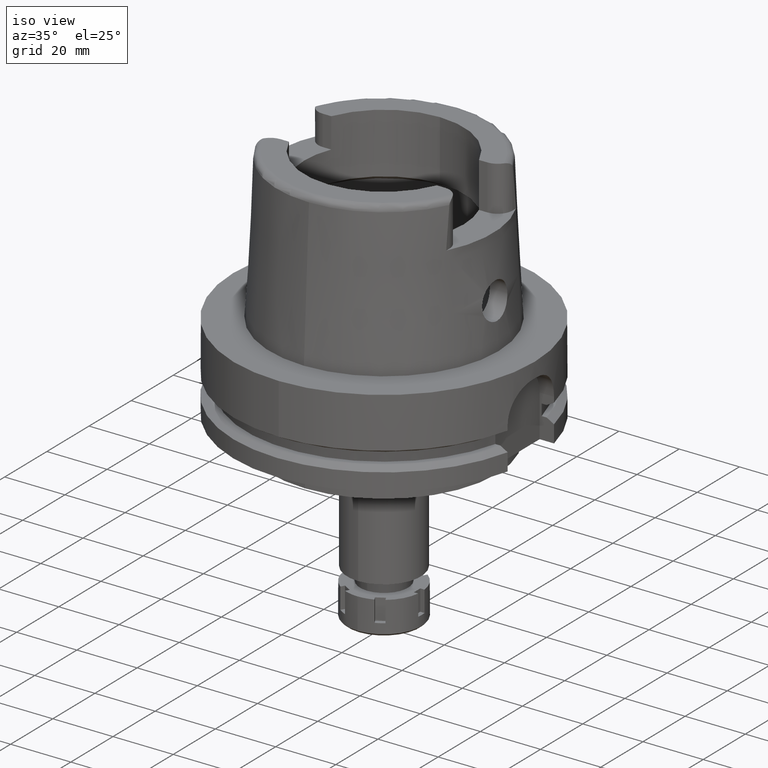
[diagram: clean part render]
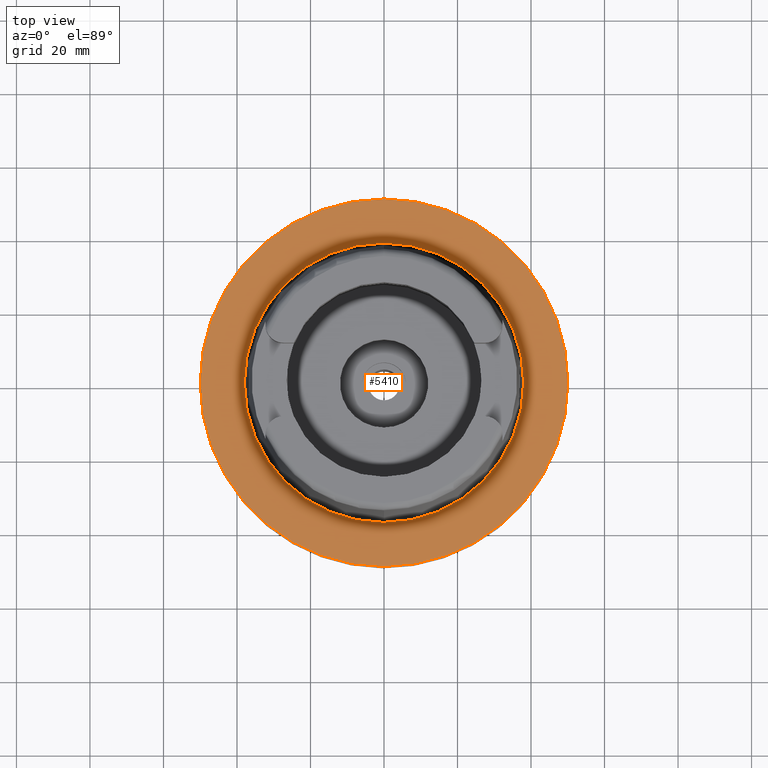
[diagram: tour spotlight — one face highlighted and labeled with its STEP entity id]
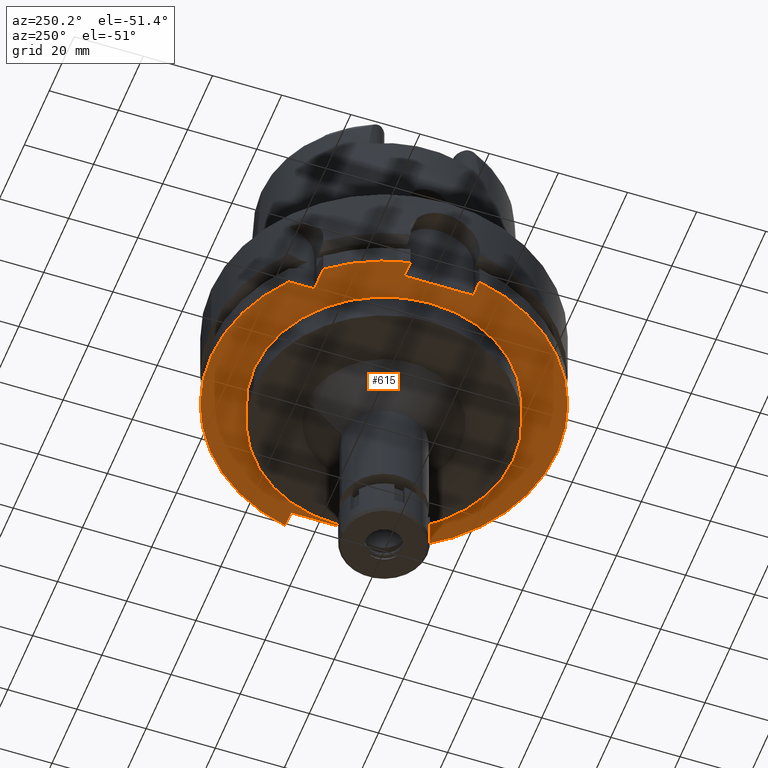
[diagram: tour spotlight — one face highlighted and labeled with its STEP entity id]
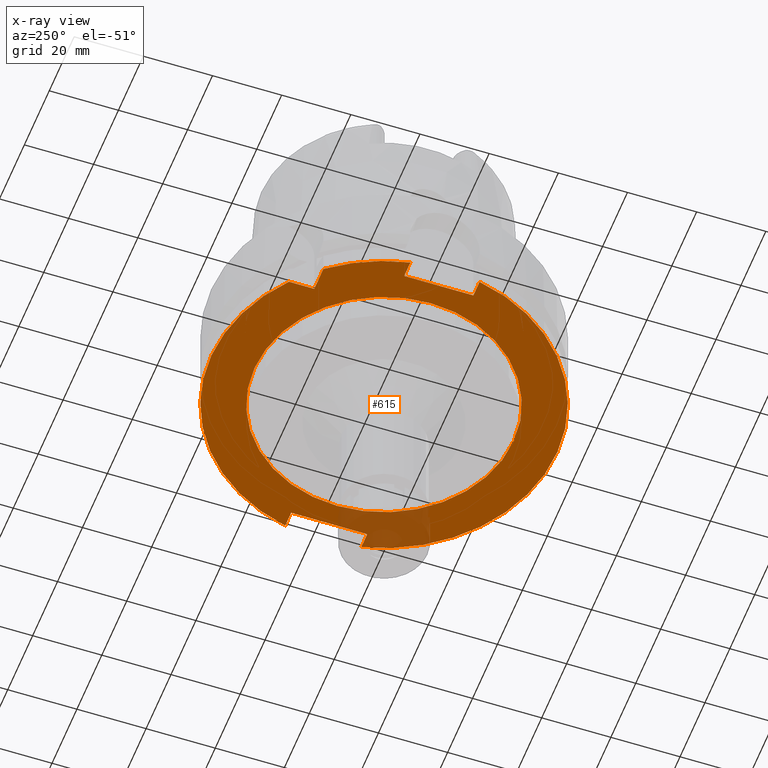
[diagram: x-ray of the same camera — body ghosted, this tour face saturated]
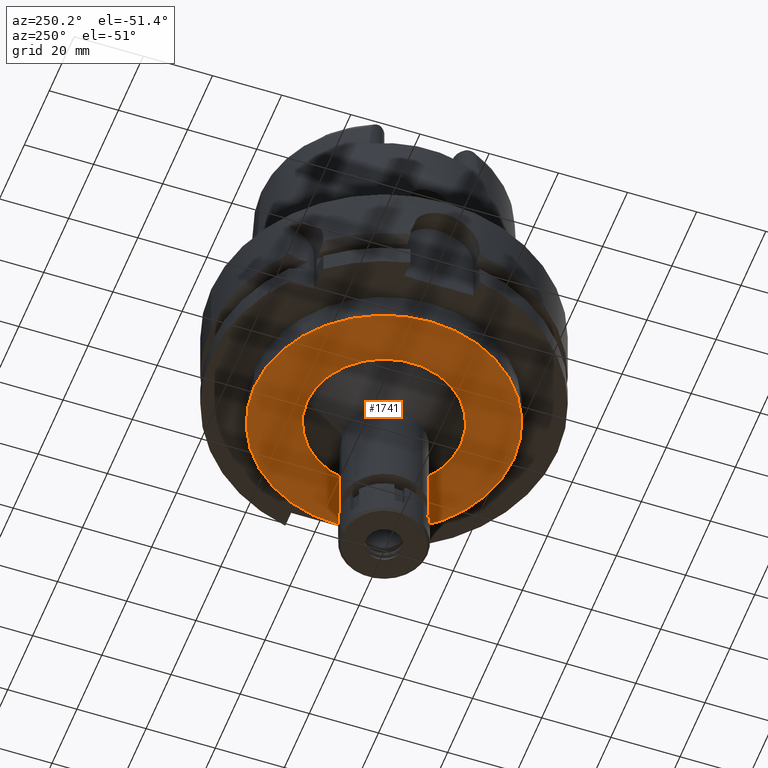
[diagram: tour spotlight — one face highlighted and labeled with its STEP entity id]
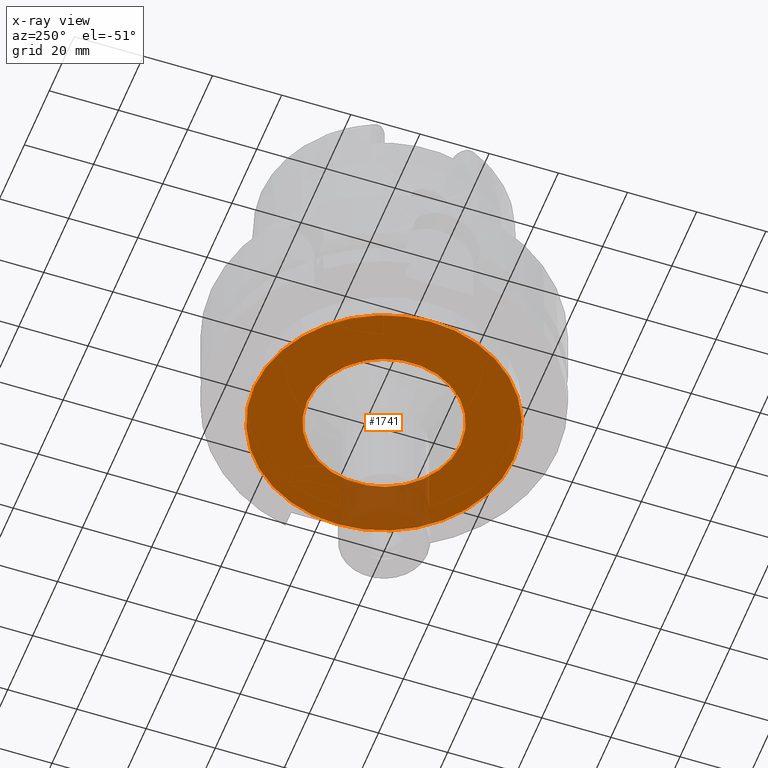
[diagram: x-ray of the same camera — body ghosted, this tour face saturated]
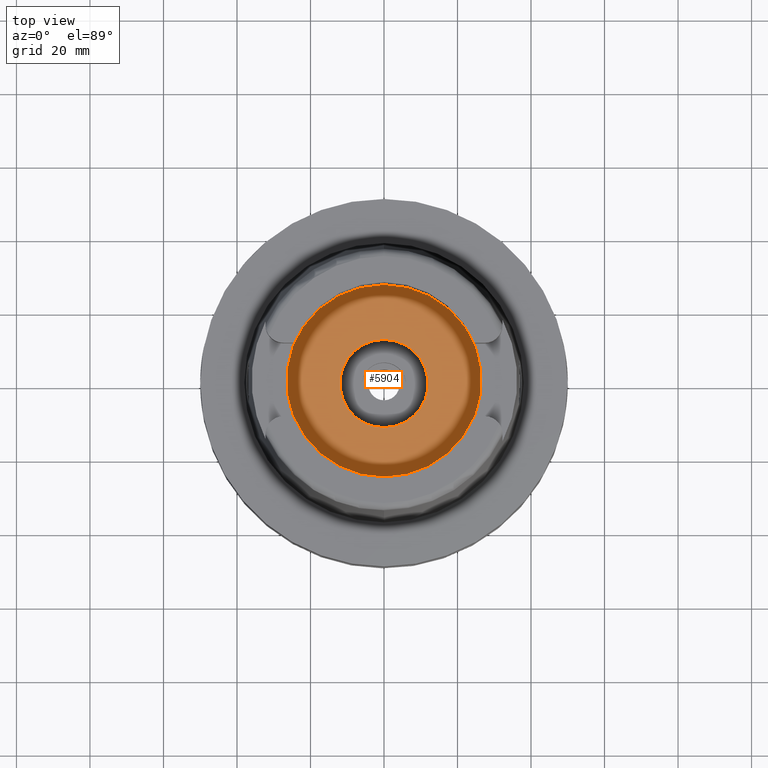
[diagram: tour spotlight — one face highlighted and labeled with its STEP entity id]
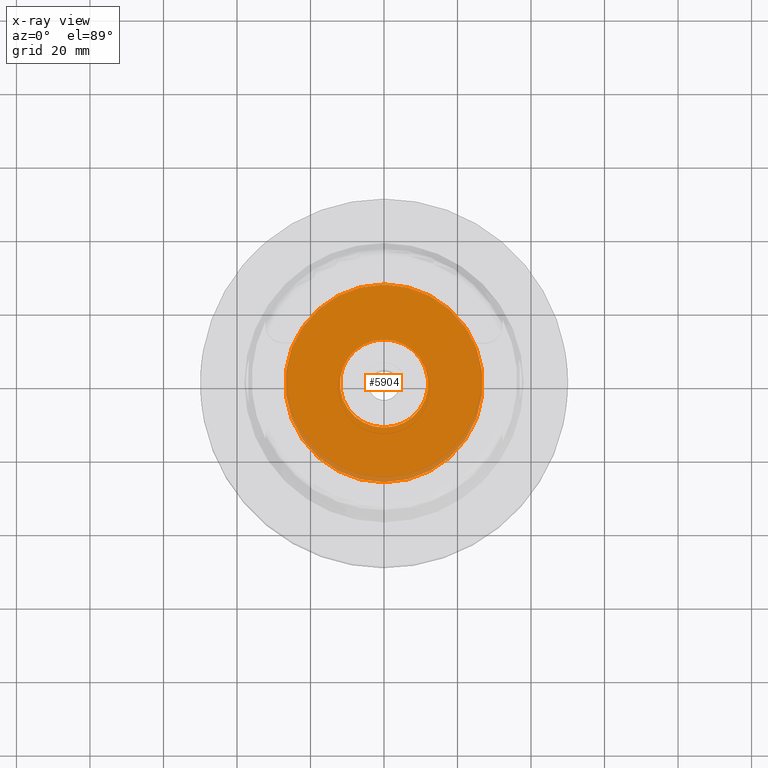
[diagram: x-ray of the same camera — body ghosted, this tour face saturated]
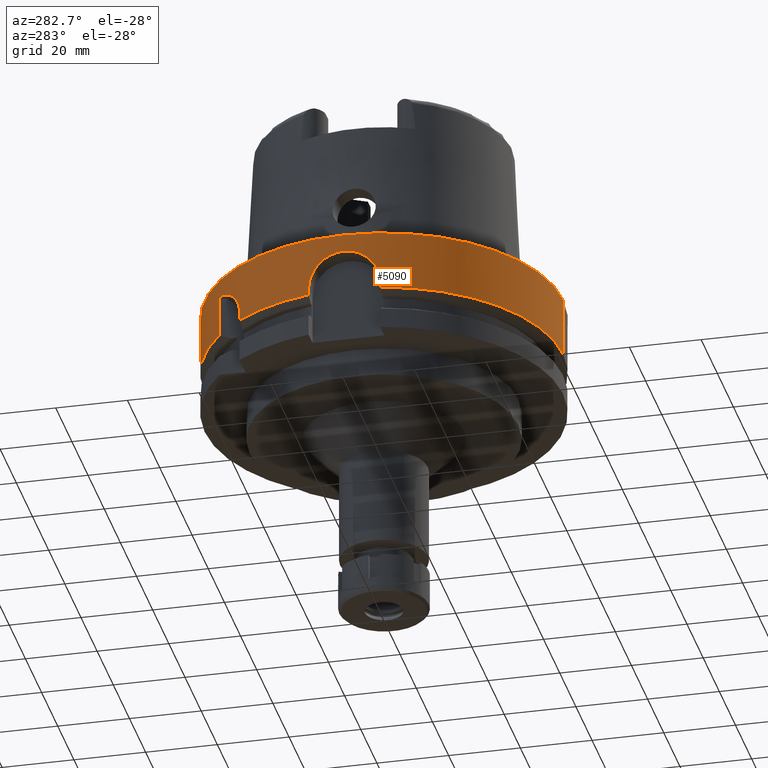
[diagram: tour spotlight — one face highlighted and labeled with its STEP entity id]
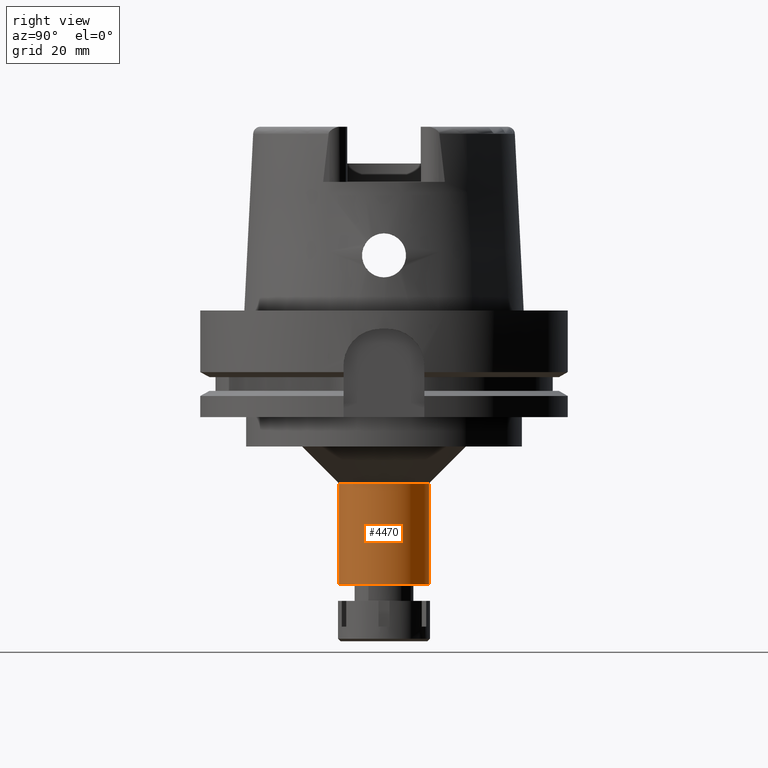
[diagram: tour spotlight — one face highlighted and labeled with its STEP entity id]
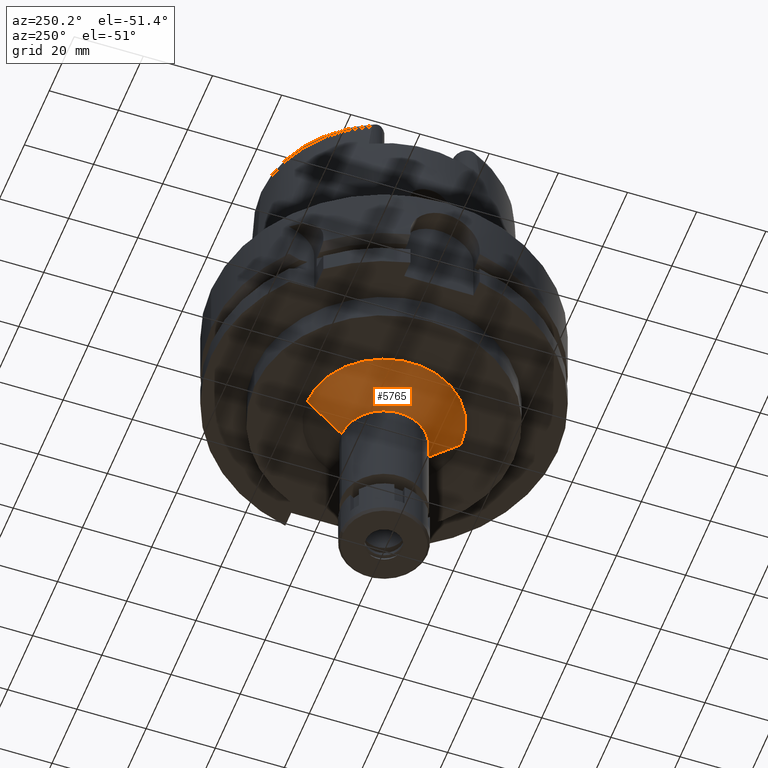
[diagram: tour spotlight — one face highlighted and labeled with its STEP entity id]
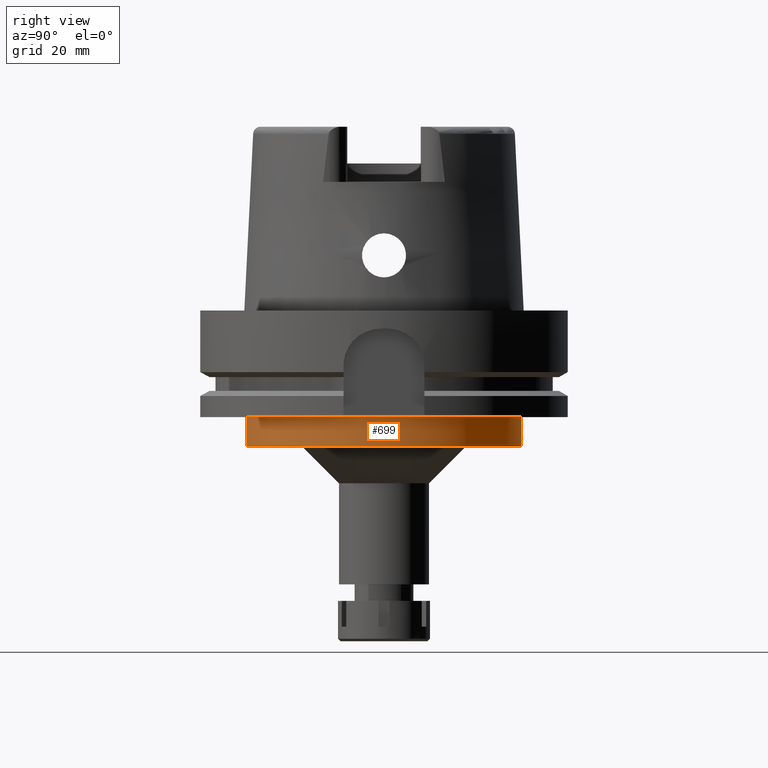
[diagram: tour spotlight — one face highlighted and labeled with its STEP entity id]
A machine part: a face-by-face anatomy tour. The part has 138 B-rep faces; the first image is the clean iso view, then the 8 largest visible faces are spotlighted one at a time (largest first), each with its STEP entity span.

Face 1 — top view, entity #5410. In plain terms, the highlighted planar face has unit normal (0, 0, 1).
Definition (entity closure, byte-faithful):
#163 = EDGE_CURVE ( 'NONE', #2428, #5601, #1936, .T. ) ;
#269 = CARTESIAN_POINT ( 'NONE',  ( 0.0000000000000000000, 0.0000000000000000000, -1.705302565823999875E-13 ) ) ;
#584 = EDGE_CURVE ( 'NONE', #3067, #1743, #4687, .T. ) ;
#796 = CIRCLE ( 'NONE', #3166, 50.00000000000000000 ) ;
#916 = AXIS2_PLACEMENT_3D ( 'NONE', #269, #3552, #2037 ) ;
#1090 = AXIS2_PLACEMENT_3D ( 'NONE', #2962, #4925, #3029 ) ;
#1112 = PLANE ( 'NONE',  #1090 ) ;
#1229 = CARTESIAN_POINT ( 'NONE',  ( 0.0000000000000000000, 0.0000000000000000000, 1.023181539494999863E-12 ) ) ;
#1282 = CIRCLE ( 'NONE', #2476, 38.00001658251999714 ) ;
#1675 = ORIENTED_EDGE ( 'NONE', *, *, #5231, .F. ) ;
#1743 = VERTEX_POINT ( 'NONE', #2818 ) ;
#1924 = CARTESIAN_POINT ( 'NONE',  ( 0.0000000000000000000, 0.0000000000000000000, 1.023181539494999863E-12 ) ) ;
#1936 = CIRCLE ( 'NONE', #2235, 38.00001658251999714 ) ;
#1978 = CARTESIAN_POINT ( 'NONE',  ( 0.0000000000000000000, -38.00001658251999714, 6.110667527536999933E-13 ) ) ;
#2037 = DIRECTION ( 'NONE',  ( 0.0000000000000000000, -1.000000000000000000, 0.0000000000000000000 ) ) ;
#2235 = AXIS2_PLACEMENT_3D ( 'NONE', #1924, #2938, #3819 ) ;
#2428 = VERTEX_POINT ( 'NONE', #1978 ) ;
#2476 = AXIS2_PLACEMENT_3D ( 'NONE', #1229, #3615, #5579 ) ;
#2551 = CARTESIAN_POINT ( 'NONE',  ( 0.0000000000000000000, 0.0000000000000000000, -1.705302565823999875E-13 ) ) ;
#2818 = CARTESIAN_POINT ( 'NONE',  ( 0.0000000000000000000, 50.00000000000000000, -9.947598300640998705E-14 ) ) ;
#2876 = ORIENTED_EDGE ( 'NONE', *, *, #163, .F. ) ;
#2938 = DIRECTION ( 'NONE',  ( 0.0000000000000000000, 0.0000000000000000000, 1.000000000000000000 ) ) ;
#2962 = CARTESIAN_POINT ( 'NONE',  ( 0.0000000000000000000, 0.0000000000000000000, 1.421085471519999843E-14 ) ) ;
#3029 = DIRECTION ( 'NONE',  ( 1.000000000000000000, 0.0000000000000000000, 0.0000000000000000000 ) ) ;
#3067 = VERTEX_POINT ( 'NONE', #4297 ) ;
#3166 = AXIS2_PLACEMENT_3D ( 'NONE', #2551, #3519, #3666 ) ;
#3478 = ORIENTED_EDGE ( 'NONE', *, *, #584, .F. ) ;
#3519 = DIRECTION ( 'NONE',  ( 0.0000000000000000000, 0.0000000000000000000, -1.000000000000000000 ) ) ;
#3552 = DIRECTION ( 'NONE',  ( 0.0000000000000000000, 0.0000000000000000000, -1.000000000000000000 ) ) ;
#3615 = DIRECTION ( 'NONE',  ( 0.0000000000000000000, 0.0000000000000000000, 1.000000000000000000 ) ) ;
#3666 = DIRECTION ( 'NONE',  ( 0.0000000000000000000, 1.000000000000000000, 0.0000000000000000000 ) ) ;
#3819 = DIRECTION ( 'NONE',  ( 0.0000000000000000000, -1.000000000000000000, 0.0000000000000000000 ) ) ;
#4227 = EDGE_LOOP ( 'NONE', ( #1675, #2876 ) ) ;
#4297 = CARTESIAN_POINT ( 'NONE',  ( 0.0000000000000000000, -50.00000000000000000, -1.705302565823999875E-13 ) ) ;
#4660 = ORIENTED_EDGE ( 'NONE', *, *, #5574, .F. ) ;
#4687 = CIRCLE ( 'NONE', #916, 50.00000000000000000 ) ;
#4925 = DIRECTION ( 'NONE',  ( 0.0000000000000000000, 0.0000000000000000000, 1.000000000000000000 ) ) ;
#5223 = EDGE_LOOP ( 'NONE', ( #4660, #3478 ) ) ;
#5231 = EDGE_CURVE ( 'NONE', #5601, #2428, #1282, .T. ) ;
#5309 = FACE_OUTER_BOUND ( 'NONE', #5223, .T. ) ;
#5368 = FACE_BOUND ( 'NONE', #4227, .T. ) ;
#5410 = ADVANCED_FACE ( 'NONE', ( #5309, #5368 ), #1112, .T. ) ;
#5574 = EDGE_CURVE ( 'NONE', #1743, #3067, #796, .T. ) ;
#5579 = DIRECTION ( 'NONE',  ( 0.0000000000000000000, 1.000000000000000000, 0.0000000000000000000 ) ) ;
#5601 = VERTEX_POINT ( 'NONE', #5603 ) ;
#5603 = CARTESIAN_POINT ( 'NONE',  ( 0.0000000000000000000, 38.00001658251999714, 1.023181539494999863E-12 ) ) ;

Face 2 — auxiliary view, entity #615. An x-ray twin of the same camera follows (body ghosted, this face saturated) — the face is partly hidden behind the body. In plain terms, the highlighted planar face has unit normal (0, 0, 1).
Definition (entity closure, byte-faithful):
#15 = AXIS2_PLACEMENT_3D ( 'NONE', #5532, #353, #4129 ) ;
#111 = VECTOR ( 'NONE', #5170, 1000.000000000000000 ) ;
#205 = LINE ( 'NONE', #2097, #5856 ) ;
#253 = DIRECTION ( 'NONE',  ( 0.0000000000000000000, 0.0000000000000000000, 1.000000000000000000 ) ) ;
#346 = VERTEX_POINT ( 'NONE', #5712 ) ;
#353 = DIRECTION ( 'NONE',  ( 0.0000000000000000000, 0.0000000000000000000, -1.000000000000000000 ) ) ;
#388 = CARTESIAN_POINT ( 'NONE',  ( -38.82975663071000128, 31.50000000000000000, -29.00000000000000000 ) ) ;
#505 = CARTESIAN_POINT ( 'NONE',  ( -44.00000000000000000, -10.00000000000000000, -29.00000000000000000 ) ) ;
#537 = LINE ( 'NONE', #505, #5656 ) ;
#557 = CARTESIAN_POINT ( 'NONE',  ( -44.00000000000000000, -10.00000000000000000, -29.00000000000000000 ) ) ;
#608 = CIRCLE ( 'NONE', #4275, 50.00000000000000000 ) ;
#615 = ADVANCED_FACE ( 'NONE', ( #5450, #1604 ), #4981, .F. ) ;
#623 = EDGE_CURVE ( 'NONE', #871, #4116, #2778, .T. ) ;
#654 = VERTEX_POINT ( 'NONE', #1108 ) ;
#665 = VERTEX_POINT ( 'NONE', #1569 ) ;
#730 = AXIS2_PLACEMENT_3D ( 'NONE', #4430, #2159, #2587 ) ;
#743 = AXIS2_PLACEMENT_3D ( 'NONE', #2425, #3850, #4251 ) ;
#754 = ORIENTED_EDGE ( 'NONE', *, *, #5010, .T. ) ;
#790 = EDGE_CURVE ( 'NONE', #665, #346, #831, .T. ) ;
#831 = LINE ( 'NONE', #4617, #4000 ) ;
#863 = ORIENTED_EDGE ( 'NONE', *, *, #790, .T. ) ;
#871 = VERTEX_POINT ( 'NONE', #1290 ) ;
#884 = LINE ( 'NONE', #1352, #111 ) ;
#930 = DIRECTION ( 'NONE',  ( 0.0000000000000000000, 0.0000000000000000000, -1.000000000000000000 ) ) ;
#1108 = CARTESIAN_POINT ( 'NONE',  ( 48.77499359303000404, 11.00000000000000000, -29.00000000000000000 ) ) ;
#1169 = CARTESIAN_POINT ( 'NONE',  ( 44.00000000000000000, 11.00000000000000000, -29.00000000000000000 ) ) ;
#1230 = DIRECTION ( 'NONE',  ( 0.0000000000000000000, -1.000000000000000000, 0.0000000000000000000 ) ) ;
#1290 = CARTESIAN_POINT ( 'NONE',  ( 48.77499359303000404, -11.00000000000000000, -29.00000000000000000 ) ) ;
#1298 = CARTESIAN_POINT ( 'NONE',  ( 0.0000000000000000000, 0.0000000000000000000, -29.00000000000000000 ) ) ;
#1352 = CARTESIAN_POINT ( 'NONE',  ( -31.50000000000000000, 31.50000000000000000, -29.00000000000000000 ) ) ;
#1379 = CARTESIAN_POINT ( 'NONE',  ( -31.50000000000000000, 31.50000000000000000, -29.00000000000000000 ) ) ;
#1495 = VECTOR ( 'NONE', #4351, 1000.000000000000000 ) ;
#1547 = CARTESIAN_POINT ( 'NONE',  ( 0.0000000000000000000, -37.50000000000000000, -29.00000000000000000 ) ) ;
#1569 = CARTESIAN_POINT ( 'NONE',  ( -44.00000000000000000, 10.00000000000000000, -29.00000000000000000 ) ) ;
#1604 = FACE_BOUND ( 'NONE', #2942, .T. ) ;
#1694 = LINE ( 'NONE', #1169, #5659 ) ;
#1886 = ORIENTED_EDGE ( 'NONE', *, *, #5692, .T. ) ;
#1895 = VERTEX_POINT ( 'NONE', #5189 ) ;
#1902 = EDGE_CURVE ( 'NONE', #654, #4442, #5302, .T. ) ;
#1915 = EDGE_LOOP ( 'NONE', ( #2518, #1886, #3794, #4690, #3811, #4526, #754, #863, #4350, #5660, #5140 ) ) ;
#1953 = CARTESIAN_POINT ( 'NONE',  ( 0.0000000000000000000, 0.0000000000000000000, -29.00000000000000000 ) ) ;
#2051 = ORIENTED_EDGE ( 'NONE', *, *, #6123, .F. ) ;
#2054 = EDGE_CURVE ( 'NONE', #4062, #346, #5198, .T. ) ;
#2097 = CARTESIAN_POINT ( 'NONE',  ( -44.00000000000000000, -10.00000000000000000, -29.00000000000000000 ) ) ;
#2159 = DIRECTION ( 'NONE',  ( 0.0000000000000000000, 0.0000000000000000000, 1.000000000000000000 ) ) ;
#2270 = VERTEX_POINT ( 'NONE', #1547 ) ;
#2298 = DIRECTION ( 'NONE',  ( 0.0000000000000000000, -1.000000000000000000, 0.0000000000000000000 ) ) ;
#2328 = CARTESIAN_POINT ( 'NONE',  ( 48.77499359303000404, -11.00000000000000000, -29.00000000000000000 ) ) ;
#2425 = CARTESIAN_POINT ( 'NONE',  ( 0.0000000000000000000, 0.0000000000000000000, -29.00000000000000000 ) ) ;
#2518 = ORIENTED_EDGE ( 'NONE', *, *, #1902, .F. ) ;
#2582 = EDGE_CURVE ( 'NONE', #4317, #4116, #1694, .T. ) ;
#2587 = DIRECTION ( 'NONE',  ( 1.000000000000000000, 0.0000000000000000000, 0.0000000000000000000 ) ) ;
#2608 = CARTESIAN_POINT ( 'NONE',  ( -31.50000000000000000, 38.82975663071000128, -29.00000000000000000 ) ) ;
#2677 = DIRECTION ( 'NONE',  ( -1.000000000000000000, 4.627973610177000155E-14, 0.0000000000000000000 ) ) ;
#2692 = CARTESIAN_POINT ( 'NONE',  ( 0.0000000000000000000, 0.0000000000000000000, -29.00000000000000000 ) ) ;
#2767 = EDGE_CURVE ( 'NONE', #4051, #4442, #884, .T. ) ;
#2778 = LINE ( 'NONE', #2328, #3557 ) ;
#2813 = DIRECTION ( 'NONE',  ( 0.0000000000000000000, 1.000000000000000000, 0.0000000000000000000 ) ) ;
#2942 = EDGE_LOOP ( 'NONE', ( #2051, #3936 ) ) ;
#3363 = CARTESIAN_POINT ( 'NONE',  ( 44.00000000000000000, 11.00000000000000000, -29.00000000000000000 ) ) ;
#3554 = DIRECTION ( 'NONE',  ( -1.000000000000000000, -4.798503851105999980E-14, 0.0000000000000000000 ) ) ;
#3557 = VECTOR ( 'NONE', #5244, 1000.000000000000000 ) ;
#3698 = DIRECTION ( 'NONE',  ( 0.0000000000000000000, 0.0000000000000000000, 1.000000000000000000 ) ) ;
#3709 = AXIS2_PLACEMENT_3D ( 'NONE', #1298, #253, #5556 ) ;
#3751 = VERTEX_POINT ( 'NONE', #557 ) ;
#3794 = ORIENTED_EDGE ( 'NONE', *, *, #2582, .T. ) ;
#3811 = ORIENTED_EDGE ( 'NONE', *, *, #4929, .F. ) ;
#3850 = DIRECTION ( 'NONE',  ( 0.0000000000000000000, 0.0000000000000000000, 1.000000000000000000 ) ) ;
#3936 = ORIENTED_EDGE ( 'NONE', *, *, #4829, .F. ) ;
#3951 = CIRCLE ( 'NONE', #5044, 37.50000000000000000 ) ;
#4000 = VECTOR ( 'NONE', #2677, 1000.000000000000000 ) ;
#4051 = VERTEX_POINT ( 'NONE', #1379 ) ;
#4062 = VERTEX_POINT ( 'NONE', #388 ) ;
#4116 = VERTEX_POINT ( 'NONE', #4137 ) ;
#4129 = DIRECTION ( 'NONE',  ( 0.0000000000000000000, -1.000000000000000000, 0.0000000000000000000 ) ) ;
#4137 = CARTESIAN_POINT ( 'NONE',  ( 44.00000000000000000, -11.00000000000000000, -29.00000000000000000 ) ) ;
#4161 = VECTOR ( 'NONE', #3554, 1000.000000000000000 ) ;
#4251 = DIRECTION ( 'NONE',  ( 0.0000000000000000000, 1.000000000000000000, 0.0000000000000000000 ) ) ;
#4275 = AXIS2_PLACEMENT_3D ( 'NONE', #2692, #3698, #2298 ) ;
#4317 = VERTEX_POINT ( 'NONE', #3363 ) ;
#4350 = ORIENTED_EDGE ( 'NONE', *, *, #2054, .F. ) ;
#4351 = DIRECTION ( 'NONE',  ( -1.000000000000000000, 1.785659532940000023E-14, 0.0000000000000000000 ) ) ;
#4430 = CARTESIAN_POINT ( 'NONE',  ( 0.0000000000000000000, 0.0000000000000000000, -29.00000000000000000 ) ) ;
#4442 = VERTEX_POINT ( 'NONE', #2608 ) ;
#4526 = ORIENTED_EDGE ( 'NONE', *, *, #5673, .F. ) ;
#4617 = CARTESIAN_POINT ( 'NONE',  ( -44.00000000000000000, 10.00000000000000000, -29.00000000000000000 ) ) ;
#4690 = ORIENTED_EDGE ( 'NONE', *, *, #623, .F. ) ;
#4752 = CARTESIAN_POINT ( 'NONE',  ( 48.77499359303000404, 11.00000000000000000, -29.00000000000000000 ) ) ;
#4771 = CIRCLE ( 'NONE', #15, 37.50000000000000000 ) ;
#4829 = EDGE_CURVE ( 'NONE', #2270, #1895, #4771, .T. ) ;
#4929 = EDGE_CURVE ( 'NONE', #5435, #871, #608, .T. ) ;
#4942 = DIRECTION ( 'NONE',  ( -1.000000000000000000, -4.627973610177000155E-14, 0.0000000000000000000 ) ) ;
#4981 = PLANE ( 'NONE',  #730 ) ;
#5010 = EDGE_CURVE ( 'NONE', #3751, #665, #537, .T. ) ;
#5044 = AXIS2_PLACEMENT_3D ( 'NONE', #1953, #930, #2813 ) ;
#5140 = ORIENTED_EDGE ( 'NONE', *, *, #2767, .T. ) ;
#5170 = DIRECTION ( 'NONE',  ( 4.798503851105999980E-14, 1.000000000000000000, 0.0000000000000000000 ) ) ;
#5189 = CARTESIAN_POINT ( 'NONE',  ( 0.0000000000000000000, 37.50000000000000000, -29.00000000000000000 ) ) ;
#5195 = EDGE_CURVE ( 'NONE', #4051, #4062, #5689, .T. ) ;
#5198 = CIRCLE ( 'NONE', #3709, 50.00000000000000711 ) ;
#5244 = DIRECTION ( 'NONE',  ( -1.000000000000000000, -1.711257052401000108E-14, 0.0000000000000000000 ) ) ;
#5281 = DIRECTION ( 'NONE',  ( 0.0000000000000000000, 1.000000000000000000, 0.0000000000000000000 ) ) ;
#5302 = CIRCLE ( 'NONE', #743, 50.00000000000000000 ) ;
#5435 = VERTEX_POINT ( 'NONE', #5583 ) ;
#5450 = FACE_OUTER_BOUND ( 'NONE', #1915, .T. ) ;
#5516 = CARTESIAN_POINT ( 'NONE',  ( -31.50000000000000000, 31.50000000000000000, -29.00000000000000000 ) ) ;
#5532 = CARTESIAN_POINT ( 'NONE',  ( 0.0000000000000000000, 0.0000000000000000000, -29.00000000000000000 ) ) ;
#5556 = DIRECTION ( 'NONE',  ( -0.7765951326141738997, 0.6299999999999789102, 0.0000000000000000000 ) ) ;
#5583 = CARTESIAN_POINT ( 'NONE',  ( -48.98979485565999425, -10.00000000000000000, -29.00000000000000000 ) ) ;
#5656 = VECTOR ( 'NONE', #5281, 1000.000000000000000 ) ;
#5659 = VECTOR ( 'NONE', #1230, 1000.000000000000000 ) ;
#5660 = ORIENTED_EDGE ( 'NONE', *, *, #5195, .F. ) ;
#5673 = EDGE_CURVE ( 'NONE', #3751, #5435, #205, .T. ) ;
#5689 = LINE ( 'NONE', #5516, #4161 ) ;
#5692 = EDGE_CURVE ( 'NONE', #654, #4317, #6005, .T. ) ;
#5712 = CARTESIAN_POINT ( 'NONE',  ( -48.98979485565999425, 10.00000000000000000, -29.00000000000000000 ) ) ;
#5856 = VECTOR ( 'NONE', #4942, 1000.000000000000000 ) ;
#6005 = LINE ( 'NONE', #4752, #1495 ) ;
#6123 = EDGE_CURVE ( 'NONE', #1895, #2270, #3951, .T. ) ;

Face 3 — auxiliary view, entity #1741. An x-ray twin of the same camera follows (body ghosted, this face saturated) — the face is partly hidden behind the body. In plain terms, the highlighted planar face has unit normal (0, 0, 1).
Definition (entity closure, byte-faithful):
#42 = AXIS2_PLACEMENT_3D ( 'NONE', #5283, #3821, #2915 ) ;
#151 = CARTESIAN_POINT ( 'NONE',  ( 0.0000000000000000000, 0.0000000000000000000, -37.00000000000000000 ) ) ;
#181 = VERTEX_POINT ( 'NONE', #4003 ) ;
#547 = EDGE_CURVE ( 'NONE', #3587, #181, #4880, .T. ) ;
#595 = ORIENTED_EDGE ( 'NONE', *, *, #547, .F. ) ;
#1256 = CARTESIAN_POINT ( 'NONE',  ( 0.0000000000000000000, 0.0000000000000000000, -37.00000000000000000 ) ) ;
#1301 = ORIENTED_EDGE ( 'NONE', *, *, #5662, .F. ) ;
#1366 = EDGE_LOOP ( 'NONE', ( #1987, #1301 ) ) ;
#1583 = AXIS2_PLACEMENT_3D ( 'NONE', #1256, #4984, #5075 ) ;
#1741 = ADVANCED_FACE ( 'NONE', ( #2724, #3105 ), #3227, .F. ) ;
#1813 = AXIS2_PLACEMENT_3D ( 'NONE', #151, #5863, #2101 ) ;
#1815 = DIRECTION ( 'NONE',  ( 0.0000000000000000000, 0.0000000000000000000, -1.000000000000000000 ) ) ;
#1888 = AXIS2_PLACEMENT_3D ( 'NONE', #3269, #1815, #5702 ) ;
#1987 = ORIENTED_EDGE ( 'NONE', *, *, #4112, .F. ) ;
#2101 = DIRECTION ( 'NONE',  ( 0.0000000000000000000, 1.000000000000000000, 0.0000000000000000000 ) ) ;
#2178 = VERTEX_POINT ( 'NONE', #5275 ) ;
#2665 = AXIS2_PLACEMENT_3D ( 'NONE', #3229, #5569, #5128 ) ;
#2724 = FACE_OUTER_BOUND ( 'NONE', #2748, .T. ) ;
#2748 = EDGE_LOOP ( 'NONE', ( #595, #5308 ) ) ;
#2915 = DIRECTION ( 'NONE',  ( 1.000000000000000000, 0.0000000000000000000, 0.0000000000000000000 ) ) ;
#3105 = FACE_BOUND ( 'NONE', #1366, .T. ) ;
#3227 = PLANE ( 'NONE',  #42 ) ;
#3229 = CARTESIAN_POINT ( 'NONE',  ( 0.0000000000000000000, 0.0000000000000000000, -37.00000000000000000 ) ) ;
#3269 = CARTESIAN_POINT ( 'NONE',  ( 0.0000000000000000000, 0.0000000000000000000, -37.00000000000000000 ) ) ;
#3587 = VERTEX_POINT ( 'NONE', #5143 ) ;
#3821 = DIRECTION ( 'NONE',  ( 0.0000000000000000000, 0.0000000000000000000, 1.000000000000000000 ) ) ;
#4003 = CARTESIAN_POINT ( 'NONE',  ( 0.0000000000000000000, -37.50000000000000000, -37.00000000000000000 ) ) ;
#4066 = CIRCLE ( 'NONE', #1888, 22.25000000000000000 ) ;
#4112 = EDGE_CURVE ( 'NONE', #4631, #2178, #4066, .T. ) ;
#4266 = CIRCLE ( 'NONE', #2665, 22.25000000000000000 ) ;
#4631 = VERTEX_POINT ( 'NONE', #5632 ) ;
#4880 = CIRCLE ( 'NONE', #1813, 37.50000000000000000 ) ;
#4984 = DIRECTION ( 'NONE',  ( 0.0000000000000000000, 0.0000000000000000000, 1.000000000000000000 ) ) ;
#5075 = DIRECTION ( 'NONE',  ( 0.0000000000000000000, -1.000000000000000000, 0.0000000000000000000 ) ) ;
#5128 = DIRECTION ( 'NONE',  ( 0.0000000000000000000, -1.000000000000000000, 0.0000000000000000000 ) ) ;
#5143 = CARTESIAN_POINT ( 'NONE',  ( 0.0000000000000000000, 37.50000000000000000, -37.00000000000000000 ) ) ;
#5275 = CARTESIAN_POINT ( 'NONE',  ( 0.0000000000000000000, -22.25000000000000000, -37.00000000000000000 ) ) ;
#5283 = CARTESIAN_POINT ( 'NONE',  ( 0.0000000000000000000, 0.0000000000000000000, -37.00000000000000000 ) ) ;
#5308 = ORIENTED_EDGE ( 'NONE', *, *, #5310, .F. ) ;
#5310 = EDGE_CURVE ( 'NONE', #181, #3587, #5851, .T. ) ;
#5569 = DIRECTION ( 'NONE',  ( 0.0000000000000000000, 0.0000000000000000000, -1.000000000000000000 ) ) ;
#5632 = CARTESIAN_POINT ( 'NONE',  ( 0.0000000000000000000, 22.25000000000000000, -37.00000000000000000 ) ) ;
#5662 = EDGE_CURVE ( 'NONE', #2178, #4631, #4266, .T. ) ;
#5702 = DIRECTION ( 'NONE',  ( 0.0000000000000000000, 1.000000000000000000, 0.0000000000000000000 ) ) ;
#5851 = CIRCLE ( 'NONE', #1583, 37.50000000000000000 ) ;
#5863 = DIRECTION ( 'NONE',  ( 0.0000000000000000000, 0.0000000000000000000, 1.000000000000000000 ) ) ;

Face 4 — top view, entity #5904. An x-ray twin of the same camera follows (body ghosted, this face saturated) — the face is partly hidden behind the body. In plain terms, the highlighted planar face has unit normal (0, 0, 1).
Definition (entity closure, byte-faithful):
#88 = CARTESIAN_POINT ( 'NONE',  ( 0.0000000000000000000, 0.0000000000000000000, -12.44999999999999929 ) ) ;
#268 = CARTESIAN_POINT ( 'NONE',  ( 0.0000000000000000000, -12.00000000000000000, -12.44999999999999929 ) ) ;
#1058 = EDGE_CURVE ( 'NONE', #3402, #5980, #4791, .T. ) ;
#1277 = AXIS2_PLACEMENT_3D ( 'NONE', #5502, #3127, #5027 ) ;
#2158 = DIRECTION ( 'NONE',  ( 0.0000000000000000000, 1.000000000000000000, 0.0000000000000000000 ) ) ;
#2201 = CARTESIAN_POINT ( 'NONE',  ( 0.0000000000000000000, -26.89999999999999858, -12.44999999999999929 ) ) ;
#2216 = CARTESIAN_POINT ( 'NONE',  ( 0.0000000000000000000, 0.0000000000000000000, -12.44999999999999929 ) ) ;
#2219 = DIRECTION ( 'NONE',  ( 0.0000000000000000000, 0.0000000000000000000, -1.000000000000000000 ) ) ;
#2236 = FACE_BOUND ( 'NONE', #5902, .T. ) ;
#2258 = DIRECTION ( 'NONE',  ( 0.0000000000000000000, 0.0000000000000000000, -1.000000000000000000 ) ) ;
#2544 = VERTEX_POINT ( 'NONE', #2645 ) ;
#2614 = ORIENTED_EDGE ( 'NONE', *, *, #1058, .F. ) ;
#2633 = ORIENTED_EDGE ( 'NONE', *, *, #3826, .F. ) ;
#2645 = CARTESIAN_POINT ( 'NONE',  ( 0.0000000000000000000, 12.00000000000000000, -12.44999999999999929 ) ) ;
#2668 = CIRCLE ( 'NONE', #2969, 12.00000000000000000 ) ;
#2687 = FACE_OUTER_BOUND ( 'NONE', #5242, .T. ) ;
#2964 = AXIS2_PLACEMENT_3D ( 'NONE', #5641, #2258, #5206 ) ;
#2969 = AXIS2_PLACEMENT_3D ( 'NONE', #2216, #4107, #4972 ) ;
#3127 = DIRECTION ( 'NONE',  ( 0.0000000000000000000, 0.0000000000000000000, 1.000000000000000000 ) ) ;
#3402 = VERTEX_POINT ( 'NONE', #2201 ) ;
#3404 = DIRECTION ( 'NONE',  ( 0.0000000000000000000, 0.0000000000000000000, 1.000000000000000000 ) ) ;
#3521 = ORIENTED_EDGE ( 'NONE', *, *, #4543, .F. ) ;
#3640 = CARTESIAN_POINT ( 'NONE',  ( 0.0000000000000000000, 0.0000000000000000000, -12.44999999999999929 ) ) ;
#3826 = EDGE_CURVE ( 'NONE', #2544, #3954, #5952, .T. ) ;
#3861 = AXIS2_PLACEMENT_3D ( 'NONE', #88, #3404, #2158 ) ;
#3954 = VERTEX_POINT ( 'NONE', #268 ) ;
#3958 = CIRCLE ( 'NONE', #2964, 26.89999999999999858 ) ;
#4107 = DIRECTION ( 'NONE',  ( 0.0000000000000000000, 0.0000000000000000000, 1.000000000000000000 ) ) ;
#4155 = PLANE ( 'NONE',  #1277 ) ;
#4543 = EDGE_CURVE ( 'NONE', #3954, #2544, #2668, .T. ) ;
#4717 = ORIENTED_EDGE ( 'NONE', *, *, #5485, .F. ) ;
#4791 = CIRCLE ( 'NONE', #6088, 26.89999999999999858 ) ;
#4972 = DIRECTION ( 'NONE',  ( 0.0000000000000000000, -1.000000000000000000, 0.0000000000000000000 ) ) ;
#5027 = DIRECTION ( 'NONE',  ( 1.000000000000000000, 0.0000000000000000000, 0.0000000000000000000 ) ) ;
#5121 = CARTESIAN_POINT ( 'NONE',  ( 0.0000000000000000000, 26.89999999999999858, -12.44999999999999929 ) ) ;
#5206 = DIRECTION ( 'NONE',  ( 0.0000000000000000000, 1.000000000000000000, 0.0000000000000000000 ) ) ;
#5242 = EDGE_LOOP ( 'NONE', ( #4717, #2614 ) ) ;
#5485 = EDGE_CURVE ( 'NONE', #5980, #3402, #3958, .T. ) ;
#5502 = CARTESIAN_POINT ( 'NONE',  ( 0.0000000000000000000, 0.0000000000000000000, -12.44999999999999929 ) ) ;
#5512 = DIRECTION ( 'NONE',  ( 0.0000000000000000000, -1.000000000000000000, 0.0000000000000000000 ) ) ;
#5641 = CARTESIAN_POINT ( 'NONE',  ( 0.0000000000000000000, 0.0000000000000000000, -12.44999999999999929 ) ) ;
#5902 = EDGE_LOOP ( 'NONE', ( #2633, #3521 ) ) ;
#5904 = ADVANCED_FACE ( 'NONE', ( #2687, #2236 ), #4155, .T. ) ;
#5952 = CIRCLE ( 'NONE', #3861, 12.00000000000000000 ) ;
#5980 = VERTEX_POINT ( 'NONE', #5121 ) ;
#6088 = AXIS2_PLACEMENT_3D ( 'NONE', #3640, #2219, #5512 ) ;

Face 5 — auxiliary view, entity #5090. In plain terms, the highlighted cylindrical surface (partial cylindrical patch) has radius 50 mm, axis along (0, 0, 1).
Definition (entity closure, byte-faithful):
#20 = CARTESIAN_POINT ( 'NONE',  ( -49.05327106856466912, 9.684690085511133972, -12.42418889641394131 ) ) ;
#55 = CARTESIAN_POINT ( 'NONE',  ( -49.80582381220375510, -4.411840447748503813, -6.019770981067466664 ) ) ;
#106 = ORIENTED_EDGE ( 'NONE', *, *, #4515, .F. ) ;
#120 = VERTEX_POINT ( 'NONE', #4347 ) ;
#265 = CARTESIAN_POINT ( 'NONE',  ( -37.02111498333610484, 33.60982189414542631, -8.467975576911294766 ) ) ;
#269 = CARTESIAN_POINT ( 'NONE',  ( 0.0000000000000000000, 0.0000000000000000000, -1.705302565823999875E-13 ) ) ;
#410 = B_SPLINE_CURVE_WITH_KNOTS ( 'NONE', 3,
 ( #4234, #4730, #947, #2371, #2766, #20, #5611, #4676, #3238, #3337, #5234, #6110, #4305, #5136, #1847, #1874, #2801, #4271, #427, #3742, #1910, #3805, #2313, #5638, #3272, #855, #1417, #3771, #1449, #973, #2859, #915, #4767, #4704, #462, #3307, #55, #521, #5204, #5110, #2408, #3679, #5580, #2284, #1321, #3211, #4178, #2735, #2549, #552, #5324, #1039, #4395, #4452 ),
 .UNSPECIFIED., .F., .F.,
 ( 4, 2, 2, 2, 2, 2, 2, 2, 2, 2, 2, 2, 2, 2, 2, 2, 2, 2, 2, 2, 2, 2, 2, 2, 2, 2, 4 ),
 ( 0.0000000000000000000, 0.03125000000000009714, 0.06250000000000019429, 0.1250000000000001943, 0.1875000000000001943, 0.2187500000000001943, 0.2500000000000002220, 0.2812500000000002220, 0.3125000000000001665, 0.3437500000000001665, 0.3750000000000001665, 0.4062500000000001110, 0.4375000000000000000, 0.4999999999999999445, 0.5312499999999998890, 0.5624999999999998890, 0.5937499999999998890, 0.6249999999999997780, 0.6562499999999997780, 0.6874999999999997780, 0.7187499999999997780, 0.7499999999999997780, 0.8124999999999998890, 0.8749999999999998890, 0.9062499999999998890, 0.9374999999999998890, 1.000000000000000000 ),
 .UNSPECIFIED. ) ;
#427 = CARTESIAN_POINT ( 'NONE',  ( -49.75134977747793386, 4.988750540692706181, -6.326968285705508954 ) ) ;
#462 = CARTESIAN_POINT ( 'NONE',  ( -49.87788521342822889, -3.505694118275406002, -5.628880875325581457 ) ) ;
#521 = CARTESIAN_POINT ( 'NONE',  ( -49.75118674888051373, -4.990374617870712015, -6.327904852930738677 ) ) ;
#552 = CARTESIAN_POINT ( 'NONE',  ( -49.05614964883167062, -9.669712101280433458, -12.42999805991012074 ) ) ;
#560 = ORIENTED_EDGE ( 'NONE', *, *, #3247, .T. ) ;
#574 = LINE ( 'NONE', #5794, #3477 ) ;
#584 = EDGE_CURVE ( 'NONE', #3067, #1743, #4687, .T. ) ;
#598 = AXIS2_PLACEMENT_3D ( 'NONE', #852, #2732, #5576 ) ;
#670 = CARTESIAN_POINT ( 'NONE',  ( -37.36139966802185342, 33.22841633014085971, -9.017051358333116440 ) ) ;
#733 = CARTESIAN_POINT ( 'NONE',  ( -35.66137508563702596, 35.04694618808287743, -6.996437293110600031 ) ) ;
#759 = CARTESIAN_POINT ( 'NONE',  ( -35.22552157508781789, 35.48472964633339188, -6.648248221037440508 ) ) ;
#781 = ORIENTED_EDGE ( 'NONE', *, *, #3450, .T. ) ;
#786 = CARTESIAN_POINT ( 'NONE',  ( -31.50000000000000000, 38.82975663071000128, -5.000000000003000267 ) ) ;
#791 = ORIENTED_EDGE ( 'NONE', *, *, #4184, .F. ) ;
#852 = CARTESIAN_POINT ( 'NONE',  ( 0.0000000000000000000, 0.0000000000000000000, -16.75240473580999989 ) ) ;
#855 = CARTESIAN_POINT ( 'NONE',  ( -49.98727337604294974, 1.297072131884468682, -5.063079227123313153 ) ) ;
#886 = DIRECTION ( 'NONE',  ( 3.933032361779000221E-13, -2.534170336197999844E-14, 1.000000000000000000 ) ) ;
#890 = EDGE_CURVE ( 'NONE', #5304, #120, #1353, .T. ) ;
#915 = CARTESIAN_POINT ( 'NONE',  ( -49.94994066468480298, -2.259794752817469110, -5.253209555805470110 ) ) ;
#916 = AXIS2_PLACEMENT_3D ( 'NONE', #269, #3552, #2037 ) ;
#947 = CARTESIAN_POINT ( 'NONE',  ( -48.99301409864090573, 9.984267675071089698, -14.35096447838951406 ) ) ;
#962 = CYLINDRICAL_SURFACE ( 'NONE', #2373, 50.00000000000000000 ) ;
#973 = CARTESIAN_POINT ( 'NONE',  ( -49.98420942202847073, -1.297367244915107909, -5.079122034242786299 ) ) ;
#1039 = CARTESIAN_POINT ( 'NONE',  ( -49.00274337469998898, -9.937182510806508162, -13.70561547086233212 ) ) ;
#1054 = DIRECTION ( 'NONE',  ( 0.0000000000000000000, 0.0000000000000000000, 1.000000000000000000 ) ) ;
#1116 = DIRECTION ( 'NONE',  ( 0.0000000000000000000, 1.000000000000000000, 0.0000000000000000000 ) ) ;
#1132 = CARTESIAN_POINT ( 'NONE',  ( -37.61272682120157640, 32.94378573122472886, -9.459297005310189022 ) ) ;
#1160 = EDGE_CURVE ( 'NONE', #3067, #3199, #5573, .T. ) ;
#1238 = EDGE_LOOP ( 'NONE', ( #1309, #791, #2189, #2164, #4336, #5519, #781, #2174, #5063, #1491, #560, #106 ) ) ;
#1280 = CARTESIAN_POINT ( 'NONE',  ( -37.31401143432582046, 33.28160937170945033, -8.939674086542067855 ) ) ;
#1300 = EDGE_CURVE ( 'NONE', #1743, #4900, #2825, .T. ) ;
#1302 = VERTEX_POINT ( 'NONE', #3856 ) ;
#1309 = ORIENTED_EDGE ( 'NONE', *, *, #2884, .F. ) ;
#1321 = CARTESIAN_POINT ( 'NONE',  ( -49.36390707117951138, -7.958783024033697195, -8.909500093872724236 ) ) ;
#1353 = LINE ( 'NONE', #2736, #3896 ) ;
#1395 = VECTOR ( 'NONE', #3107, 1000.000000000000114 ) ;
#1417 = CARTESIAN_POINT ( 'NONE',  ( -50.00001276120484306, 0.6509093675188923900, -4.999956924247997314 ) ) ;
#1424 = DIRECTION ( 'NONE',  ( 0.0000000000000000000, 0.0000000000000000000, 1.000000000000000000 ) ) ;
#1449 = CARTESIAN_POINT ( 'NONE',  ( -49.99680002002526180, -0.6514146689907369669, -5.015875041971521675 ) ) ;
#1463 = FACE_OUTER_BOUND ( 'NONE', #1238, .T. ) ;
#1491 = ORIENTED_EDGE ( 'NONE', *, *, #1300, .T. ) ;
#1506 = CARTESIAN_POINT ( 'NONE',  ( -38.17726743818018065, 32.28919486585422050, -10.70934903190926946 ) ) ;
#1563 = CARTESIAN_POINT ( 'NONE',  ( -38.51643403721716652, 31.88237590588257575, -11.89681351156685984 ) ) ;
#1685 = CARTESIAN_POINT ( 'NONE',  ( -32.91545983657162822, 37.68148817064449219, -5.318168386392837732 ) ) ;
#1743 = VERTEX_POINT ( 'NONE', #2818 ) ;
#1777 = CARTESIAN_POINT ( 'NONE',  ( 0.0000000000000000000, -50.00000000000000000, -9.947598300640998705E-14 ) ) ;
#1826 = CARTESIAN_POINT ( 'NONE',  ( 0.0000000000000000000, 0.0000000000000000000, -16.75240473580999989 ) ) ;
#1847 = CARTESIAN_POINT ( 'NONE',  ( -49.56392084514536123, 6.594210339440434332, -7.474928745218226922 ) ) ;
#1874 = CARTESIAN_POINT ( 'NONE',  ( -49.62899891494356552, 6.085090487835675077, -7.057631952576931766 ) ) ;
#1910 = CARTESIAN_POINT ( 'NONE',  ( -49.83161392523056321, 4.111256529898119183, -5.878401453227973583 ) ) ;
#1950 = VERTEX_POINT ( 'NONE', #2539 ) ;
#2001 = CARTESIAN_POINT ( 'NONE',  ( -38.67012601446499787, 31.69591732114523097, -12.65147180045958919 ) ) ;
#2030 = CARTESIAN_POINT ( 'NONE',  ( -38.82975663071000128, 31.50000000000000000, -14.63689785921000031 ) ) ;
#2037 = DIRECTION ( 'NONE',  ( 0.0000000000000000000, -1.000000000000000000, 0.0000000000000000000 ) ) ;
#2060 = CARTESIAN_POINT ( 'NONE',  ( -38.33757111271755491, 32.09787207711931956, -11.19154602654285746 ) ) ;
#2164 = ORIENTED_EDGE ( 'NONE', *, *, #5587, .F. ) ;
#2174 = ORIENTED_EDGE ( 'NONE', *, *, #1160, .F. ) ;
#2189 = ORIENTED_EDGE ( 'NONE', *, *, #3984, .T. ) ;
#2283 = VECTOR ( 'NONE', #4667, 1000.000000000000000 ) ;
#2284 = CARTESIAN_POINT ( 'NONE',  ( -49.43022059887681507, -7.541711222667776049, -8.400035818733631032 ) ) ;
#2313 = CARTESIAN_POINT ( 'NONE',  ( -49.89857304296575791, 3.198445865227088181, -5.519613993474086655 ) ) ;
#2366 = CIRCLE ( 'NONE', #4053, 49.99999999999997868 ) ;
#2371 = CARTESIAN_POINT ( 'NONE',  ( -49.00580010131366038, 9.921319867194128506, -13.70617931160539094 ) ) ;
#2373 = AXIS2_PLACEMENT_3D ( 'NONE', #4813, #1054, #3025 ) ;
#2408 = CARTESIAN_POINT ( 'NONE',  ( -49.62881521156742792, -6.086586877430944398, -7.058779782209498421 ) ) ;
#2523 = CARTESIAN_POINT ( 'NONE',  ( -38.47997079377430651, 31.92636510588468113, -11.74787042355067435 ) ) ;
#2539 = CARTESIAN_POINT ( 'NONE',  ( -31.50000000000000000, 38.82975663071000128, -5.000000000003000267 ) ) ;
#2549 = CARTESIAN_POINT ( 'NONE',  ( -49.09278989258923076, -9.481937093880389966, -11.80611569216967105 ) ) ;
#2579 = CARTESIAN_POINT ( 'NONE',  ( -34.12531048589741545, 36.57120011760799372, -5.849377810869010652 ) ) ;
#2732 = DIRECTION ( 'NONE',  ( 0.0000000000000000000, 0.0000000000000000000, 1.000000000000000000 ) ) ;
#2735 = CARTESIAN_POINT ( 'NONE',  ( -49.11383813249577912, -9.372673253752685341, -11.49857013433637754 ) ) ;
#2736 = CARTESIAN_POINT ( 'NONE',  ( -48.98979485565999425, -10.00000000000000000, -16.75240473580999989 ) ) ;
#2766 = CARTESIAN_POINT ( 'NONE',  ( -49.01532077359893691, 9.874334691806925690, -13.38637230126443534 ) ) ;
#2786 = EDGE_CURVE ( 'NONE', #1302, #120, #410, .T. ) ;
#2801 = CARTESIAN_POINT ( 'NONE',  ( -49.66109665971371356, 5.818199470677054563, -6.860273031121062459 ) ) ;
#2817 = CARTESIAN_POINT ( 'NONE',  ( -38.82975663071000128, 31.50000000000000000, -14.63689785921000031 ) ) ;
#2818 = CARTESIAN_POINT ( 'NONE',  ( 0.0000000000000000000, 50.00000000000000000, -9.947598300640998705E-14 ) ) ;
#2825 = LINE ( 'NONE', #5258, #4396 ) ;
#2859 = CARTESIAN_POINT ( 'NONE',  ( -49.97485841623518610, -1.617643659042722337, -5.126307811638942447 ) ) ;
#2884 = EDGE_CURVE ( 'NONE', #4999, #1950, #5441, .T. ) ;
#3000 = CARTESIAN_POINT ( 'NONE',  ( 0.0000000000000000000, -50.00000000000000000, -16.75240473580999989 ) ) ;
#3015 = CARTESIAN_POINT ( 'NONE',  ( -37.52477920304988857, 33.04402466834314112, -9.296024014454463469 ) ) ;
#3025 = DIRECTION ( 'NONE',  ( 0.0000000000000000000, 1.000000000000000000, 0.0000000000000000000 ) ) ;
#3067 = VERTEX_POINT ( 'NONE', #4297 ) ;
#3107 = DIRECTION ( 'NONE',  ( -3.028823767049074487E-07, -2.457085509676059455E-07, -0.9999999999999239497 ) ) ;
#3134 = CARTESIAN_POINT ( 'NONE',  ( -35.50698472748587875, 35.20361682920416513, -6.865942659268778669 ) ) ;
#3199 = VERTEX_POINT ( 'NONE', #3000 ) ;
#3211 = CARTESIAN_POINT ( 'NONE',  ( -49.24041324778600170, -8.690181341200778675, -10.00850486952029250 ) ) ;
#3238 = CARTESIAN_POINT ( 'NONE',  ( -49.24057617454467106, 8.689264381284511174, -10.00689432263757439 ) ) ;
#3247 = EDGE_CURVE ( 'NONE', #4900, #4601, #5846, .T. ) ;
#3272 = CARTESIAN_POINT ( 'NONE',  ( -49.95007296249472262, 2.256697800569570589, -5.252537339675006578 ) ) ;
#3307 = CARTESIAN_POINT ( 'NONE',  ( -49.83132479517585267, -4.114898999067256646, -5.879966185546440016 ) ) ;
#3337 = CARTESIAN_POINT ( 'NONE',  ( -49.33322137804877627, 8.140496473599077021, -9.182651765820171619 ) ) ;
#3403 = VECTOR ( 'NONE', #6011, 1000.000000000000000 ) ;
#3450 = EDGE_CURVE ( 'NONE', #5304, #3199, #2366, .T. ) ;
#3474 = DIRECTION ( 'NONE',  ( 0.0000000000000000000, 0.0000000000000000000, 1.000000000000000000 ) ) ;
#3477 = VECTOR ( 'NONE', #4825, 1000.000000000000227 ) ;
#3546 = CARTESIAN_POINT ( 'NONE',  ( -35.13739758439980676, 35.57195557121269047, -6.583427698358504720 ) ) ;
#3552 = DIRECTION ( 'NONE',  ( 0.0000000000000000000, 0.0000000000000000000, -1.000000000000000000 ) ) ;
#3578 = CARTESIAN_POINT ( 'NONE',  ( -35.96278925458687326, 34.73848165934565202, -7.264243359271282507 ) ) ;
#3607 = CARTESIAN_POINT ( 'NONE',  ( -31.50000000000000000, 38.82975663071000128, -5.000000000003000267 ) ) ;
#3662 = CARTESIAN_POINT ( 'NONE',  ( 1.065814103639999922E-14, 50.00000000000000000, -16.75240473580999989 ) ) ;
#3679 = CARTESIAN_POINT ( 'NONE',  ( -49.56373229000912062, -6.595625869068792113, -7.476172084829849851 ) ) ;
#3702 = LINE ( 'NONE', #4455, #2283 ) ;
#3736 = CARTESIAN_POINT ( 'NONE',  ( -31.50000355958999876, 38.82975374304999860, -16.75239179145000179 ) ) ;
#3742 = CARTESIAN_POINT ( 'NONE',  ( -49.80597247480898915, 4.410163543088208904, -6.018949576889943032 ) ) ;
#3771 = CARTESIAN_POINT ( 'NONE',  ( -49.99999360500559220, -0.3269239678294733609, -5.000048098238602634 ) ) ;
#3805 = CARTESIAN_POINT ( 'NONE',  ( -49.87786566908135200, 3.505808458107192660, -5.628992301551435595 ) ) ;
#3856 = CARTESIAN_POINT ( 'NONE',  ( -48.98979485565999425, 10.00000000000000000, -15.00000000000000000 ) ) ;
#3860 = CARTESIAN_POINT ( 'NONE',  ( -38.70813330404713071, 31.64946695265184573, -12.89643728788920285 ) ) ;
#3895 = CARTESIAN_POINT ( 'NONE',  ( -38.56465578587454246, 31.82407435016806119, -12.10638150413417513 ) ) ;
#3896 = VECTOR ( 'NONE', #886, 1000.000000000000000 ) ;
#3900 = VERTEX_POINT ( 'NONE', #4021 ) ;
#3950 = AXIS2_PLACEMENT_3D ( 'NONE', #4412, #3474, #1116 ) ;
#3984 = EDGE_CURVE ( 'NONE', #3900, #5122, #4948, .T. ) ;
#4021 = CARTESIAN_POINT ( 'NONE',  ( -38.82975730067999365, 31.49999917413000361, -16.75240773889999701 ) ) ;
#4041 = CARTESIAN_POINT ( 'NONE',  ( -35.15707735188131977, 35.55250576888295200, -6.597782004744827233 ) ) ;
#4053 = AXIS2_PLACEMENT_3D ( 'NONE', #1826, #1424, #5177 ) ;
#4178 = CARTESIAN_POINT ( 'NONE',  ( -49.18424439192069286, -8.998583427531237078, -10.58912033894727855 ) ) ;
#4184 = EDGE_CURVE ( 'NONE', #3900, #4999, #574, .T. ) ;
#4234 = CARTESIAN_POINT ( 'NONE',  ( -48.98979485565999425, 10.00000000000000000, -15.00000000000000000 ) ) ;
#4264 = DIRECTION ( 'NONE',  ( 0.0000000000000000000, -2.969006079282000197E-14, -1.000000000000000000 ) ) ;
#4271 = CARTESIAN_POINT ( 'NONE',  ( -49.72222128286315268, 5.270358358214859429, -6.495232976551730708 ) ) ;
#4297 = CARTESIAN_POINT ( 'NONE',  ( 0.0000000000000000000, -50.00000000000000000, -1.705302565823999875E-13 ) ) ;
#4305 = CARTESIAN_POINT ( 'NONE',  ( -49.46402646853832152, 7.305184000900601937, -8.163237007348140395 ) ) ;
#4336 = ORIENTED_EDGE ( 'NONE', *, *, #2786, .T. ) ;
#4347 = CARTESIAN_POINT ( 'NONE',  ( -48.98979485565999425, -10.00000000000000000, -15.00000000000000000 ) ) ;
#4395 = CARTESIAN_POINT ( 'NONE',  ( -48.98979485566344039, -10.00000000000062350, -14.34992636894187257 ) ) ;
#4396 = VECTOR ( 'NONE', #4264, 1000.000000000000000 ) ;
#4412 = CARTESIAN_POINT ( 'NONE',  ( 0.0000000000000000000, 0.0000000000000000000, -16.75240473580999989 ) ) ;
#4424 = CARTESIAN_POINT ( 'NONE',  ( -38.47284387184663501, 31.93495452265803536, -11.71954263644563987 ) ) ;
#4452 = CARTESIAN_POINT ( 'NONE',  ( -48.98979485565999425, -10.00000000000000000, -15.00000000000000000 ) ) ;
#4455 = CARTESIAN_POINT ( 'NONE',  ( -48.98979485565999425, 10.00000000000000000, -15.00000000000000000 ) ) ;
#4515 = EDGE_CURVE ( 'NONE', #1950, #4601, #5444, .T. ) ;
#4517 = CARTESIAN_POINT ( 'NONE',  ( -35.17767104755201046, 35.53213789489861085, -6.612863863887767479 ) ) ;
#4577 = CARTESIAN_POINT ( 'NONE',  ( -37.33738321992768050, 33.25538692523294770, -8.977692251724072037 ) ) ;
#4601 = VERTEX_POINT ( 'NONE', #3736 ) ;
#4667 = DIRECTION ( 'NONE',  ( -4.014125812537999910E-13, -2.635537149646000036E-14, -1.000000000000000000 ) ) ;
#4676 = CARTESIAN_POINT ( 'NONE',  ( -49.18453679202102791, 8.997008706975726966, -10.58560031115986710 ) ) ;
#4687 = CIRCLE ( 'NONE', #916, 50.00000000000000000 ) ;
#4704 = CARTESIAN_POINT ( 'NONE',  ( -49.89845962713047811, -3.200212664194285406, -5.520212011311181222 ) ) ;
#4730 = CARTESIAN_POINT ( 'NONE',  ( -48.98979485566343328, 10.00000000000068567, -14.67477384672369922 ) ) ;
#4767 = CARTESIAN_POINT ( 'NONE',  ( -49.93455893158447623, -2.576326564035913869, -5.331990395739913957 ) ) ;
#4798 = CARTESIAN_POINT ( 'NONE',  ( -38.60171289321711896, 31.77910422413252789, -12.28749926236264578 ) ) ;
#4813 = CARTESIAN_POINT ( 'NONE',  ( 0.0000000000000000000, 0.0000000000000000000, -90.70000000000000284 ) ) ;
#4825 = DIRECTION ( 'NONE',  ( 3.166955095344913800E-07, 3.903884141554897929E-07, 0.9999999999998735456 ) ) ;
#4900 = VERTEX_POINT ( 'NONE', #3662 ) ;
#4913 = CARTESIAN_POINT ( 'NONE',  ( -37.41676153238952196, 33.16611064692683897, -9.109386478909497598 ) ) ;
#4938 = CARTESIAN_POINT ( 'NONE',  ( -35.14332903771710903, 35.56609542159909410, -6.587745866290699581 ) ) ;
#4948 = CIRCLE ( 'NONE', #598, 50.00000000000000711 ) ;
#4999 = VERTEX_POINT ( 'NONE', #2817 ) ;
#5006 = CARTESIAN_POINT ( 'NONE',  ( -36.15390997075008528, 34.53934225132250901, -7.451874958973632168 ) ) ;
#5035 = CARTESIAN_POINT ( 'NONE',  ( -36.69780592982969836, 33.96397181541038179, -8.040723158244929891 ) ) ;
#5063 = ORIENTED_EDGE ( 'NONE', *, *, #584, .T. ) ;
#5090 = ADVANCED_FACE ( 'NONE', ( #1463 ), #962, .T. ) ;
#5110 = CARTESIAN_POINT ( 'NONE',  ( -49.66071698588068983, -5.821521321562137530, -6.862562853044869016 ) ) ;
#5122 = VERTEX_POINT ( 'NONE', #5220 ) ;
#5136 = CARTESIAN_POINT ( 'NONE',  ( -49.53074240762870062, 6.838214994895060350, -7.696049756172468115 ) ) ;
#5177 = DIRECTION ( 'NONE',  ( -0.9797958971132723072, -0.1999999999999946265, 0.0000000000000000000 ) ) ;
#5204 = CARTESIAN_POINT ( 'NONE',  ( -49.72224263844700687, -5.270247532378741440, -6.495087439006735686 ) ) ;
#5220 = CARTESIAN_POINT ( 'NONE',  ( -48.98979485565999425, 10.00000000000000000, -16.75240473580999989 ) ) ;
#5234 = CARTESIAN_POINT ( 'NONE',  ( -49.36522353530786233, 7.944764735771467912, -8.917965014434019011 ) ) ;
#5258 = CARTESIAN_POINT ( 'NONE',  ( 0.0000000000000000000, 50.00000000000000000, -9.947598300640998705E-14 ) ) ;
#5299 = CARTESIAN_POINT ( 'NONE',  ( -38.79935079904429074, 31.53769344881714787, -13.63626533468334756 ) ) ;
#5304 = VERTEX_POINT ( 'NONE', #6044 ) ;
#5324 = CARTESIAN_POINT ( 'NONE',  ( -49.04050012748191278, -9.748510700173218524, -12.74779322321094099 ) ) ;
#5352 = CARTESIAN_POINT ( 'NONE',  ( -38.49469861848739782, 31.90860439361668810, -11.80739349772445301 ) ) ;
#5386 = CARTESIAN_POINT ( 'NONE',  ( -37.78243678190493426, 32.74938217096097048, -9.790032844368385057 ) ) ;
#5415 = CARTESIAN_POINT ( 'NONE',  ( -35.32041691404273820, 35.39038475050971044, -6.719788662001356272 ) ) ;
#5441 = B_SPLINE_CURVE_WITH_KNOTS ( 'NONE', 3,
 ( #2030, #5823, #5299, #3860, #2001, #4798, #3895, #1563, #5352, #2523, #4424, #2060, #1506, #5854, #5386, #1132, #3015, #4913, #670, #4577, #5977, #1280, #265, #5035, #5006, #3578, #733, #3134, #5415, #759, #4517, #4041, #4938, #3546, #2579, #1685, #786 ),
 .UNSPECIFIED., .F., .F.,
 ( 4, 2, 2, 1, 1, 2, 2, 2, 2, 1, 1, 1, 2, 2, 2, 2, 1, 1, 1, 1, 2, 2, 4 ),
 ( 0.0000000000000000000, 0.1249999999999917566, 0.1874999999999877320, 0.2187499999999859557, 0.2343749999999846512, 0.2421874999999840128, 0.2499999999999833467, 0.3749999999999763522, 0.4374999999999727440, 0.4687499999999716338, 0.4843749999999709677, 0.4921874999999709677, 0.4960937499999714118, 0.4999999999999718003, 0.6249999999999991118, 0.6875000000000127676, 0.7187500000000198730, 0.7343750000000234257, 0.7421875000000247580, 0.7460937500000247580, 0.7480468750000243139, 0.7500000000000237588, 1.000000000000000000 ),
 .UNSPECIFIED. ) ;
#5444 = LINE ( 'NONE', #3607, #1395 ) ;
#5519 = ORIENTED_EDGE ( 'NONE', *, *, #890, .F. ) ;
#5573 = LINE ( 'NONE', #1777, #3403 ) ;
#5576 = DIRECTION ( 'NONE',  ( -0.7765951326141738997, 0.6299999999999789102, 0.0000000000000000000 ) ) ;
#5580 = CARTESIAN_POINT ( 'NONE',  ( -49.53067426088641412, -6.838737925735863143, -7.696485171463537611 ) ) ;
#5587 = EDGE_CURVE ( 'NONE', #1302, #5122, #3702, .T. ) ;
#5611 = CARTESIAN_POINT ( 'NONE',  ( -49.09036018453721084, 9.497439764034860232, -11.80158618435093842 ) ) ;
#5638 = CARTESIAN_POINT ( 'NONE',  ( -49.93465246831762272, 2.574515594304663146, -5.331509912841230658 ) ) ;
#5794 = CARTESIAN_POINT ( 'NONE',  ( -38.82975730067999365, 31.49999917413000361, -16.75240773889999701 ) ) ;
#5823 = CARTESIAN_POINT ( 'NONE',  ( -38.82975663071001549, 31.49999999999999289, -14.13607113942071791 ) ) ;
#5846 = CIRCLE ( 'NONE', #3950, 50.00000000000000000 ) ;
#5854 = CARTESIAN_POINT ( 'NONE',  ( -37.88732972157379209, 32.62788133126261414, -10.01611296047788358 ) ) ;
#5977 = CARTESIAN_POINT ( 'NONE',  ( -37.32130782457736018, 33.27342664265235328, -8.951500453874315255 ) ) ;
#6011 = DIRECTION ( 'NONE',  ( 0.0000000000000000000, 2.969006079282000197E-14, -1.000000000000000000 ) ) ;
#6044 = CARTESIAN_POINT ( 'NONE',  ( -48.98979485565999425, -10.00000000000000000, -16.75240473580999989 ) ) ;
#6110 = CARTESIAN_POINT ( 'NONE',  ( -49.43056103556367731, 7.527563822850312114, -8.408713046767676502 ) ) ;

Face 6 — right view, entity #4470. In plain terms, the highlighted cylindrical surface (partial cylindrical patch) has radius 12.25 mm, axis along (0, 0, 1).
Definition (entity closure, byte-faithful):
#234 = VECTOR ( 'NONE', #942, 1000.000000000000000 ) ;
#299 = LINE ( 'NONE', #4047, #3862 ) ;
#336 = CARTESIAN_POINT ( 'NONE',  ( 0.0000000000000000000, 0.0000000000000000000, -74.50000000000000000 ) ) ;
#396 = VERTEX_POINT ( 'NONE', #3315 ) ;
#454 = CARTESIAN_POINT ( 'NONE',  ( 0.0000000000000000000, 12.25000000000000000, -47.00000000000000000 ) ) ;
#707 = EDGE_LOOP ( 'NONE', ( #3225, #4600, #907, #1183 ) ) ;
#806 = EDGE_CURVE ( 'NONE', #4570, #396, #2507, .T. ) ;
#907 = ORIENTED_EDGE ( 'NONE', *, *, #806, .T. ) ;
#942 = DIRECTION ( 'NONE',  ( 0.0000000000000000000, 0.0000000000000000000, -1.000000000000000000 ) ) ;
#999 = AXIS2_PLACEMENT_3D ( 'NONE', #2548, #4451, #5916 ) ;
#1183 = ORIENTED_EDGE ( 'NONE', *, *, #1254, .F. ) ;
#1254 = EDGE_CURVE ( 'NONE', #5289, #396, #5727, .T. ) ;
#1754 = DIRECTION ( 'NONE',  ( 0.0000000000000000000, 0.0000000000000000000, -1.000000000000000000 ) ) ;
#1801 = VERTEX_POINT ( 'NONE', #3789 ) ;
#1938 = CARTESIAN_POINT ( 'NONE',  ( 0.0000000000000000000, 0.0000000000000000000, -47.00000000000000000 ) ) ;
#2256 = DIRECTION ( 'NONE',  ( 0.0000000000000000000, 0.0000000000000000000, 1.000000000000000000 ) ) ;
#2507 = CIRCLE ( 'NONE', #2794, 12.25000000000000000 ) ;
#2548 = CARTESIAN_POINT ( 'NONE',  ( 0.0000000000000000000, 0.0000000000000000000, -90.70000000000000284 ) ) ;
#2699 = CARTESIAN_POINT ( 'NONE',  ( 0.0000000000000000000, -12.25000000000000000, -74.50000000000000000 ) ) ;
#2794 = AXIS2_PLACEMENT_3D ( 'NONE', #336, #2256, #4677 ) ;
#2924 = DIRECTION ( 'NONE',  ( 0.0000000000000000000, 1.000000000000000000, 0.0000000000000000000 ) ) ;
#2979 = DIRECTION ( 'NONE',  ( 0.0000000000000000000, 0.0000000000000000000, -1.000000000000000000 ) ) ;
#3225 = ORIENTED_EDGE ( 'NONE', *, *, #4260, .T. ) ;
#3315 = CARTESIAN_POINT ( 'NONE',  ( 0.0000000000000000000, 12.25000000000000000, -74.50000000000000000 ) ) ;
#3678 = CARTESIAN_POINT ( 'NONE',  ( 0.0000000000000000000, 12.25000000000000000, -47.00000000000000000 ) ) ;
#3789 = CARTESIAN_POINT ( 'NONE',  ( 0.0000000000000000000, -12.25000000000000000, -47.00000000000000000 ) ) ;
#3862 = VECTOR ( 'NONE', #1754, 1000.000000000000000 ) ;
#4016 = CYLINDRICAL_SURFACE ( 'NONE', #999, 12.25000000000000000 ) ;
#4047 = CARTESIAN_POINT ( 'NONE',  ( 0.0000000000000000000, -12.25000000000000000, -47.00000000000000000 ) ) ;
#4260 = EDGE_CURVE ( 'NONE', #5289, #1801, #4571, .T. ) ;
#4451 = DIRECTION ( 'NONE',  ( 0.0000000000000000000, 0.0000000000000000000, 1.000000000000000000 ) ) ;
#4470 = ADVANCED_FACE ( 'NONE', ( #4516 ), #4016, .T. ) ;
#4516 = FACE_OUTER_BOUND ( 'NONE', #707, .T. ) ;
#4570 = VERTEX_POINT ( 'NONE', #2699 ) ;
#4571 = CIRCLE ( 'NONE', #5962, 12.25000000000000000 ) ;
#4600 = ORIENTED_EDGE ( 'NONE', *, *, #5285, .T. ) ;
#4677 = DIRECTION ( 'NONE',  ( 0.0000000000000000000, -1.000000000000000000, 0.0000000000000000000 ) ) ;
#5285 = EDGE_CURVE ( 'NONE', #1801, #4570, #299, .T. ) ;
#5289 = VERTEX_POINT ( 'NONE', #3678 ) ;
#5727 = LINE ( 'NONE', #454, #234 ) ;
#5916 = DIRECTION ( 'NONE',  ( 0.0000000000000000000, 1.000000000000000000, 0.0000000000000000000 ) ) ;
#5962 = AXIS2_PLACEMENT_3D ( 'NONE', #1938, #2979, #2924 ) ;

Face 7 — auxiliary view, entity #5765. In plain terms, the highlighted conical surface has half-angle 45 deg.
Definition (entity closure, byte-faithful):
#2 = AXIS2_PLACEMENT_3D ( 'NONE', #4614, #2620, #5543 ) ;
#405 = EDGE_LOOP ( 'NONE', ( #2297, #570, #1467, #3432 ) ) ;
#570 = ORIENTED_EDGE ( 'NONE', *, *, #3212, .F. ) ;
#956 = EDGE_CURVE ( 'NONE', #4631, #5289, #5639, .T. ) ;
#1028 = DIRECTION ( 'NONE',  ( 0.0000000000000000000, 1.000000000000000000, 0.0000000000000000000 ) ) ;
#1288 = AXIS2_PLACEMENT_3D ( 'NONE', #1466, #5159, #1028 ) ;
#1466 = CARTESIAN_POINT ( 'NONE',  ( 0.0000000000000000000, 0.0000000000000000000, -42.00000000000000000 ) ) ;
#1467 = ORIENTED_EDGE ( 'NONE', *, *, #5662, .T. ) ;
#1489 = CIRCLE ( 'NONE', #2, 12.25000000000000000 ) ;
#1578 = CARTESIAN_POINT ( 'NONE',  ( 0.0000000000000000000, -22.25000000000000000, -37.00000000000000000 ) ) ;
#1801 = VERTEX_POINT ( 'NONE', #3789 ) ;
#2178 = VERTEX_POINT ( 'NONE', #5275 ) ;
#2297 = ORIENTED_EDGE ( 'NONE', *, *, #5229, .F. ) ;
#2380 = CONICAL_SURFACE ( 'NONE', #1288, 17.25000000000000000, 0.7853981633972997312 ) ;
#2620 = DIRECTION ( 'NONE',  ( 0.0000000000000000000, 0.0000000000000000000, -1.000000000000000000 ) ) ;
#2665 = AXIS2_PLACEMENT_3D ( 'NONE', #3229, #5569, #5128 ) ;
#3212 = EDGE_CURVE ( 'NONE', #2178, #1801, #4382, .T. ) ;
#3229 = CARTESIAN_POINT ( 'NONE',  ( 0.0000000000000000000, 0.0000000000000000000, -37.00000000000000000 ) ) ;
#3432 = ORIENTED_EDGE ( 'NONE', *, *, #956, .T. ) ;
#3465 = VECTOR ( 'NONE', #3532, 1000.000000000000114 ) ;
#3532 = DIRECTION ( 'NONE',  ( 0.0000000000000000000, 0.7071067811865474617, -0.7071067811865474617 ) ) ;
#3678 = CARTESIAN_POINT ( 'NONE',  ( 0.0000000000000000000, 12.25000000000000000, -47.00000000000000000 ) ) ;
#3789 = CARTESIAN_POINT ( 'NONE',  ( 0.0000000000000000000, -12.25000000000000000, -47.00000000000000000 ) ) ;
#4266 = CIRCLE ( 'NONE', #2665, 22.25000000000000000 ) ;
#4382 = LINE ( 'NONE', #1578, #3465 ) ;
#4614 = CARTESIAN_POINT ( 'NONE',  ( 0.0000000000000000000, 0.0000000000000000000, -47.00000000000000000 ) ) ;
#4631 = VERTEX_POINT ( 'NONE', #5632 ) ;
#4768 = DIRECTION ( 'NONE',  ( 0.0000000000000000000, -0.7071067811865474617, -0.7071067811865474617 ) ) ;
#5128 = DIRECTION ( 'NONE',  ( 0.0000000000000000000, -1.000000000000000000, 0.0000000000000000000 ) ) ;
#5159 = DIRECTION ( 'NONE',  ( 0.0000000000000000000, 0.0000000000000000000, 1.000000000000000000 ) ) ;
#5229 = EDGE_CURVE ( 'NONE', #1801, #5289, #1489, .T. ) ;
#5275 = CARTESIAN_POINT ( 'NONE',  ( 0.0000000000000000000, -22.25000000000000000, -37.00000000000000000 ) ) ;
#5289 = VERTEX_POINT ( 'NONE', #3678 ) ;
#5387 = VECTOR ( 'NONE', #4768, 1000.000000000000114 ) ;
#5543 = DIRECTION ( 'NONE',  ( 0.0000000000000000000, -1.000000000000000000, 0.0000000000000000000 ) ) ;
#5569 = DIRECTION ( 'NONE',  ( 0.0000000000000000000, 0.0000000000000000000, -1.000000000000000000 ) ) ;
#5632 = CARTESIAN_POINT ( 'NONE',  ( 0.0000000000000000000, 22.25000000000000000, -37.00000000000000000 ) ) ;
#5639 = LINE ( 'NONE', #5674, #5387 ) ;
#5662 = EDGE_CURVE ( 'NONE', #2178, #4631, #4266, .T. ) ;
#5674 = CARTESIAN_POINT ( 'NONE',  ( 0.0000000000000000000, 22.25000000000000000, -37.00000000000000000 ) ) ;
#5695 = FACE_OUTER_BOUND ( 'NONE', #405, .T. ) ;
#5765 = ADVANCED_FACE ( 'NONE', ( #5695 ), #2380, .T. ) ;

Face 8 — right view, entity #699. In plain terms, the highlighted cylindrical surface (partial cylindrical patch) has radius 37.5 mm, axis along (0, 0, 1).
Definition (entity closure, byte-faithful):
#181 = VERTEX_POINT ( 'NONE', #4003 ) ;
#290 = CARTESIAN_POINT ( 'NONE',  ( 0.0000000000000000000, -37.50000000000000000, -29.00000000000000000 ) ) ;
#303 = DIRECTION ( 'NONE',  ( 0.0000000000000000000, 1.000000000000000000, 0.0000000000000000000 ) ) ;
#508 = EDGE_LOOP ( 'NONE', ( #2080, #1577, #4375, #4721 ) ) ;
#532 = AXIS2_PLACEMENT_3D ( 'NONE', #3143, #2646, #303 ) ;
#699 = ADVANCED_FACE ( 'NONE', ( #1258 ), #5077, .T. ) ;
#930 = DIRECTION ( 'NONE',  ( 0.0000000000000000000, 0.0000000000000000000, -1.000000000000000000 ) ) ;
#1096 = EDGE_CURVE ( 'NONE', #1895, #3587, #4610, .T. ) ;
#1137 = EDGE_CURVE ( 'NONE', #2270, #181, #2249, .T. ) ;
#1256 = CARTESIAN_POINT ( 'NONE',  ( 0.0000000000000000000, 0.0000000000000000000, -37.00000000000000000 ) ) ;
#1258 = FACE_OUTER_BOUND ( 'NONE', #508, .T. ) ;
#1348 = DIRECTION ( 'NONE',  ( 0.0000000000000000000, 0.0000000000000000000, -1.000000000000000000 ) ) ;
#1547 = CARTESIAN_POINT ( 'NONE',  ( 0.0000000000000000000, -37.50000000000000000, -29.00000000000000000 ) ) ;
#1577 = ORIENTED_EDGE ( 'NONE', *, *, #1137, .T. ) ;
#1583 = AXIS2_PLACEMENT_3D ( 'NONE', #1256, #4984, #5075 ) ;
#1895 = VERTEX_POINT ( 'NONE', #5189 ) ;
#1953 = CARTESIAN_POINT ( 'NONE',  ( 0.0000000000000000000, 0.0000000000000000000, -29.00000000000000000 ) ) ;
#2080 = ORIENTED_EDGE ( 'NONE', *, *, #6123, .T. ) ;
#2188 = DIRECTION ( 'NONE',  ( 0.0000000000000000000, 0.0000000000000000000, -1.000000000000000000 ) ) ;
#2249 = LINE ( 'NONE', #290, #5294 ) ;
#2270 = VERTEX_POINT ( 'NONE', #1547 ) ;
#2646 = DIRECTION ( 'NONE',  ( 0.0000000000000000000, 0.0000000000000000000, 1.000000000000000000 ) ) ;
#2813 = DIRECTION ( 'NONE',  ( 0.0000000000000000000, 1.000000000000000000, 0.0000000000000000000 ) ) ;
#3143 = CARTESIAN_POINT ( 'NONE',  ( 0.0000000000000000000, 0.0000000000000000000, -90.70000000000000284 ) ) ;
#3587 = VERTEX_POINT ( 'NONE', #5143 ) ;
#3798 = VECTOR ( 'NONE', #1348, 1000.000000000000000 ) ;
#3951 = CIRCLE ( 'NONE', #5044, 37.50000000000000000 ) ;
#4003 = CARTESIAN_POINT ( 'NONE',  ( 0.0000000000000000000, -37.50000000000000000, -37.00000000000000000 ) ) ;
#4375 = ORIENTED_EDGE ( 'NONE', *, *, #5310, .T. ) ;
#4610 = LINE ( 'NONE', #5105, #3798 ) ;
#4721 = ORIENTED_EDGE ( 'NONE', *, *, #1096, .F. ) ;
#4984 = DIRECTION ( 'NONE',  ( 0.0000000000000000000, 0.0000000000000000000, 1.000000000000000000 ) ) ;
#5044 = AXIS2_PLACEMENT_3D ( 'NONE', #1953, #930, #2813 ) ;
#5075 = DIRECTION ( 'NONE',  ( 0.0000000000000000000, -1.000000000000000000, 0.0000000000000000000 ) ) ;
#5077 = CYLINDRICAL_SURFACE ( 'NONE', #532, 37.50000000000000000 ) ;
#5105 = CARTESIAN_POINT ( 'NONE',  ( 0.0000000000000000000, 37.50000000000000000, -29.00000000000000000 ) ) ;
#5143 = CARTESIAN_POINT ( 'NONE',  ( 0.0000000000000000000, 37.50000000000000000, -37.00000000000000000 ) ) ;
#5189 = CARTESIAN_POINT ( 'NONE',  ( 0.0000000000000000000, 37.50000000000000000, -29.00000000000000000 ) ) ;
#5294 = VECTOR ( 'NONE', #2188, 1000.000000000000000 ) ;
#5310 = EDGE_CURVE ( 'NONE', #181, #3587, #5851, .T. ) ;
#5851 = CIRCLE ( 'NONE', #1583, 37.50000000000000000 ) ;
#6123 = EDGE_CURVE ( 'NONE', #1895, #2270, #3951, .T. ) ;